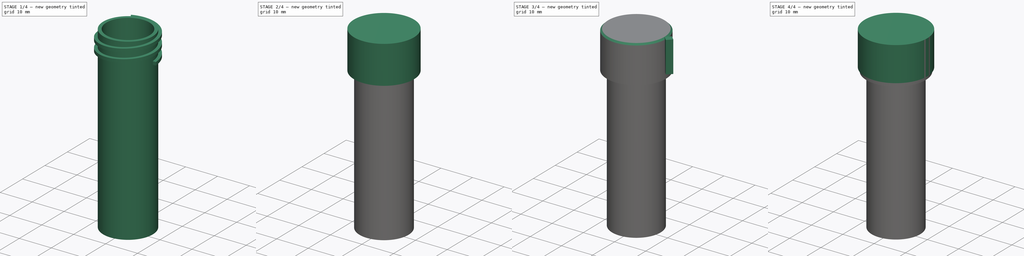
[diagram: build sequence overview — one tinted view per stage of 4, left to right]
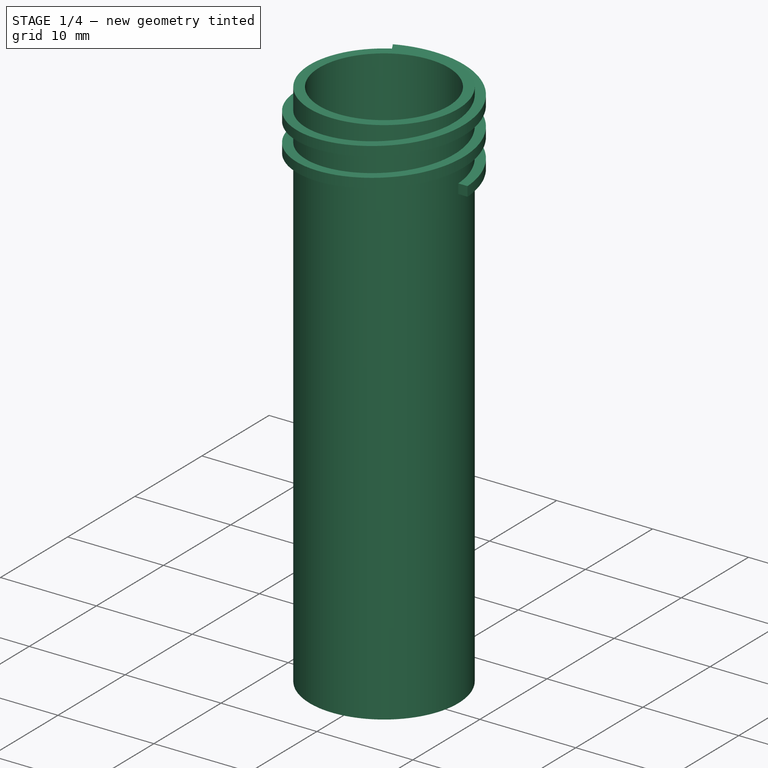
[diagram: stage 1 of 4 — iso view after this stage's code; geometry added in this stage tinted green]
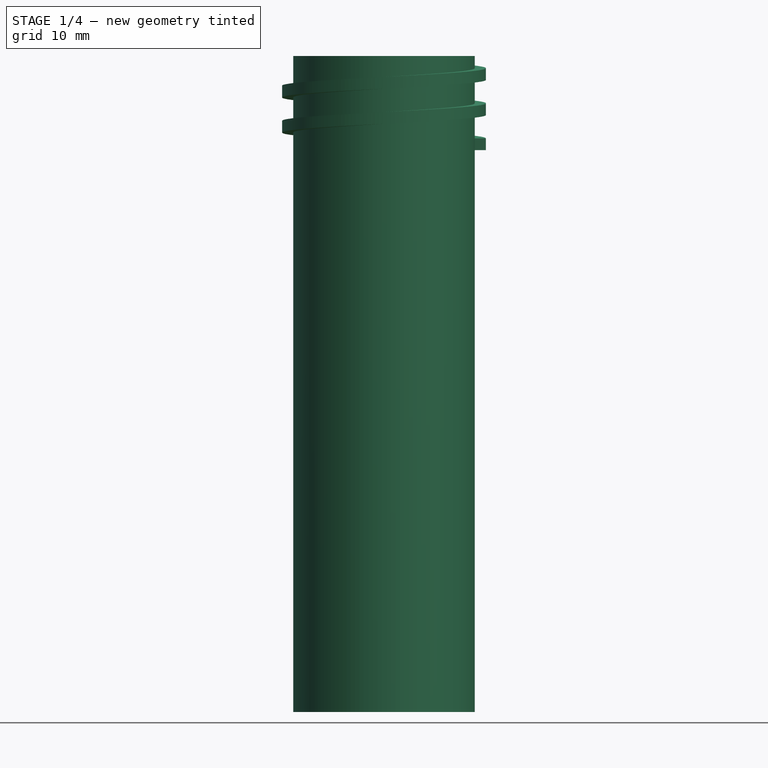
[diagram: stage 1 of 4 — front view after this stage's code; geometry added in this stage tinted green]
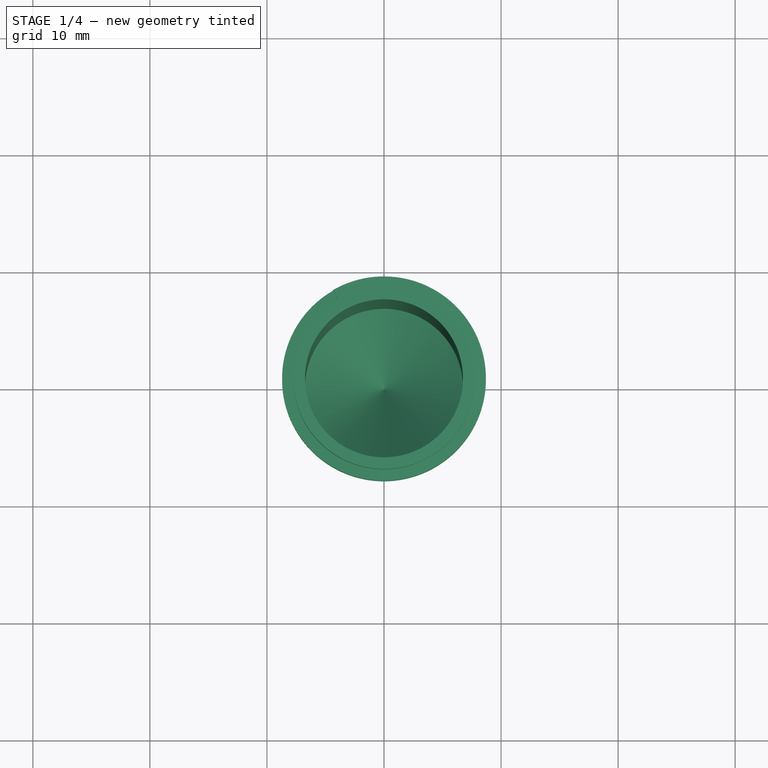
[diagram: stage 1 of 4 — top view after this stage's code; geometry added in this stage tinted green]
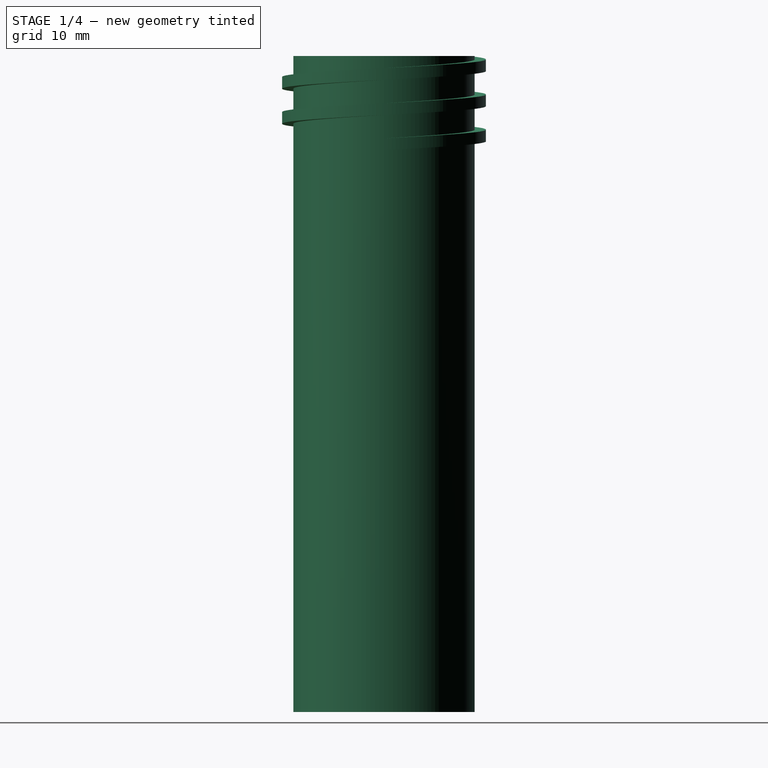
[diagram: stage 1 of 4 — right view after this stage's code; geometry added in this stage tinted green]
FCSTD DOCUMENT  (FreeCAD 0.20R27422 (Git))
Label: Tubes
License: All rights reserved
LicenseURL: http://en.wikipedia.org/wiki/All_rights_reserved
objects: Sketcher::SketchObject×5, TechDraw::DrawViewPart×5, PartDesign::Body×3, PartDesign::Revolution×2, Part::Cylinder×2, Part::Cut×2, Part::FeaturePython×2, Part::Helix×1, PartDesign::ShapeBinder×1, PartDesign::FeatureBase×1, PartDesign::AdditivePipe×1, Part::Part2DObjectPython×1, TechDraw::DrawSVGTemplate×1, Part::Compound×1, Part::Box×1, Part::Chamfer×1, TechDraw::DrawPage×1
note: 27 computed .brp shape members not serialized (recipe doc carries the construction recipe); baked Part::Feature solids carry a one-line shape summary decoded from their .brp

FEATURE [Sketcher::SketchObject] Sketch
  FullyConstrained = false
  MapMode = 5
  Placement = pos=(0,0,0) rot=(1,0,0;1.5708rad)
  Support = -> [XZ_Plane]
  sketch-geometry (12):
    g0: LineSegment StartX=0 StartY=0 StartZ=0 EndX=0 EndY=56 EndZ=0
    g1: LineSegment StartX=0 StartY=0 StartZ=0 EndX=7.75 EndY=0 EndZ=0
    g2: LineSegment StartX=0 StartY=0 StartZ=0 EndX=0 EndY=1.5 EndZ=0
    g3: LineSegment StartX=7.75 StartY=0 StartZ=0 EndX=7.75 EndY=7 EndZ=0
    g4: LineSegment StartX=7.75 StartY=0 StartZ=0 EndX=6.75 EndY=0 EndZ=0
    g5: LineSegment StartX=7.75 StartY=0 StartZ=0 EndX=7.75 EndY=56.0354 EndZ=0
    g6: LineSegment StartX=7.75 StartY=56.0354 StartZ=0 EndX=6.75 EndY=56.0354 EndZ=0
    g7: LineSegment StartX=6.75 StartY=56.0354 StartZ=0 EndX=6.75 EndY=9.14015 EndZ=0
    g8: LineSegment StartX=0 StartY=1.5 StartZ=0 EndX=6.75 EndY=8.14015 EndZ=0
    g9: LineSegment StartX=0 StartY=1.5 StartZ=0 EndX=0 EndY=2.5 EndZ=0
    g10: LineSegment StartX=0 StartY=2.5 StartZ=0 EndX=6.75 EndY=9.14015 EndZ=0
    g11: LineSegment StartX=6.75 StartY=8.14015 StartZ=0 EndX=6.75 EndY=0 EndZ=0
  constraints (30):
    c: Coincident(g0,g-1)
    c: PointOnObject(g0,g-2)
    c: DistanceY(g0,g0) = 56
    c: Coincident(g1,g0)
    c: Horizontal(g1)
    c: DistanceX(g1,g1) = 7.75
    c: Coincident(g2,g0)
    c: PointOnObject(g2,g0)
    c: DistanceY(g0,g2) = 1.5
    c: Coincident(g3,g1)
    c: Vertical(g3)
    c: DistanceY(g3,g3) = 7
    c: Coincident(g4,g1)
    c: PointOnObject(g4,g1)
    c: DistanceX(g4,g4) = 1
    c: Coincident(g5,g4)
    c: Vertical(g5)
    c: Coincident(g6,g5)
    c: Horizontal(g6)
    c: Coincident(g7,g6)
    c: Coincident(g11,g4)
    c: Vertical(g7)
    c: Coincident(g8,g2)
    c: Coincident(g9,g8)
    c: PointOnObject(g9,g0)
    c: Coincident(g10,g9)
    c: Parallel(g8,g10)
    c: DistanceY(g9,g9) = 1
    c: Coincident(g7,g10)
    c: Coincident(g11,g8)
FEATURE [PartDesign::Revolution] Revolution
  Angle = 360
  Axis = (0,2e-16,1)
  Base = (0,0,0)
  Placement = pos=(0,0,0) rot=(1,0,0;1.5708rad)
  Profile = -> Sketch
  ReferenceAxis = -> Sketch [V_Axis]
  Reversed = true
FEATURE [PartDesign::Body] Body  label="Tube body"
  Group = -> [Sketch,Revolution]
  Origin = -> Origin
  Tip = -> Revolution
FEATURE [Part::Helix] Helix
  Angle = 0
  AttacherType = Attacher::AttachEngine3D
  Height = 7
  LocalCoord = 0
  Pitch = 3
  Placement = pos=(0,0,4) rot=(0,0,1;0rad)
  Radius = 7.8
  SegmentLength = 1
  Style = 1
FEATURE [PartDesign::ShapeBinder] CopyCylinder002
  Placement = pos=(0,0,14.5) rot=(0,0,1;0rad)
  TraceSupport = false
FEATURE [Sketcher::SketchObject] Sketch001
  FullyConstrained = false
  MapMode = 5
  Placement = pos=(0,0,0) rot=(1,0,0;1.5708rad)
  Support = -> [XZ_Plane001]
  sketch-geometry (4):
    g0: LineSegment StartX=7.70917 StartY=0 StartZ=0 EndX=7.70917 EndY=1 EndZ=0
    g1: LineSegment StartX=7.70917 StartY=1 StartZ=0 EndX=8.70917 EndY=1 EndZ=0
    g2: LineSegment StartX=7.70917 StartY=0 StartZ=0 EndX=8.70917 EndY=0 EndZ=0
    g3: LineSegment StartX=8.70917 StartY=0 StartZ=0 EndX=8.70917 EndY=1 EndZ=0
  constraints (11):
    c: PointOnObject(g0,g-1)
    c: Vertical(g0)
    c: Coincident(g1,g0)
    c: Horizontal(g1)
    c: Coincident(g2,g0)
    c: Horizontal(g2)
    c: Equal(g2,g1)
    c: DistanceX(g1,g1) = 1
    c: Coincident(g3,g2)
    c: Coincident(g3,g1)
    c: DistanceY(g3,g3) = 1
FEATURE [Sketcher::SketchObject] Sketch002
  FullyConstrained = true
  MapMode = 5
  Placement = pos=(0,0,14.5) rot=(0,0,1;0rad)
  Support = -> [CopyCylinder002]
FEATURE [PartDesign::FeatureBase] BaseFeature
  BaseFeature = -> Helix
FEATURE [PartDesign::AdditivePipe] AdditivePipe
  AuxilleryCurvelinear = true
  AuxillerySpineTangent = false
  BaseFeature = -> BaseFeature
  Binormal = (0,0,0)
  Mode = 2
  Profile = -> Sketch001
  Spine = -> BaseFeature
  SpineTangent = false
  Transformation = 0
  Transition = 0
FEATURE [PartDesign::Body] Body002  label="Lid body"
  Group = -> [Sketch003,Revolution001]
  Origin = -> Origin002
  Tip = -> Revolution001
FEATURE [Part::Part2DObjectPython] ShapeString  # Draft 2D object (typed FeaturePython)
  FontFile = <userpath>/Desktop/Roboto-Black.ttf
  MakeFace = true
  Placement = pos=(19.9362,22.102,0) rot=(1,0,0;0rad)
  Size = 10
  String = 1
  Tracking = 0
FEATURE [TechDraw::DrawSVGTemplate] Template
  Height = 210
  Orientation = 1
  Width = 297
FEATURE [Part::Compound] Compound
  Links = -> [Body001,Body]
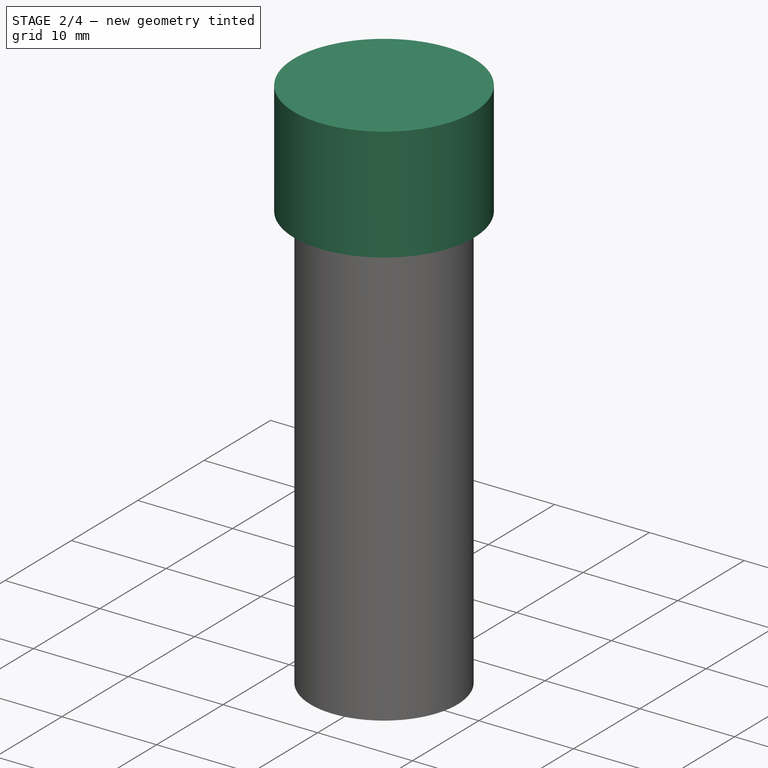
[diagram: stage 2 of 4 — iso view after this stage's code; geometry added in this stage tinted green]
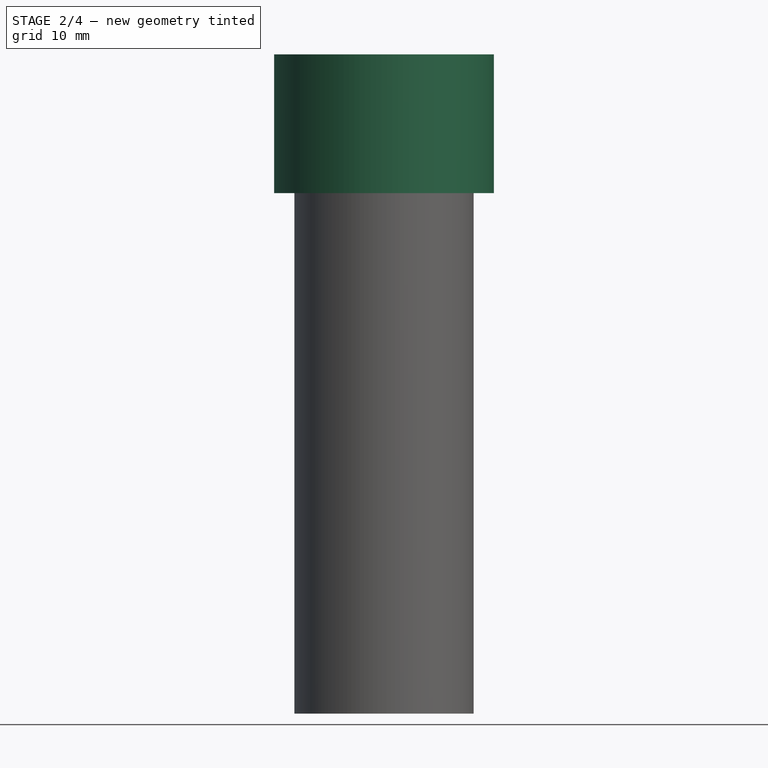
[diagram: stage 2 of 4 — front view after this stage's code; geometry added in this stage tinted green]
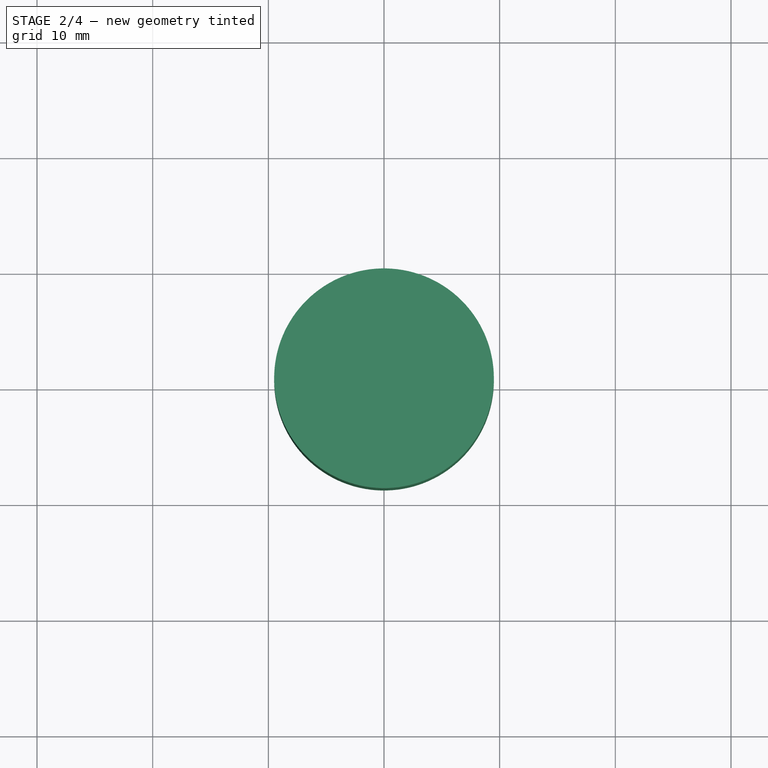
[diagram: stage 2 of 4 — top view after this stage's code; geometry added in this stage tinted green]
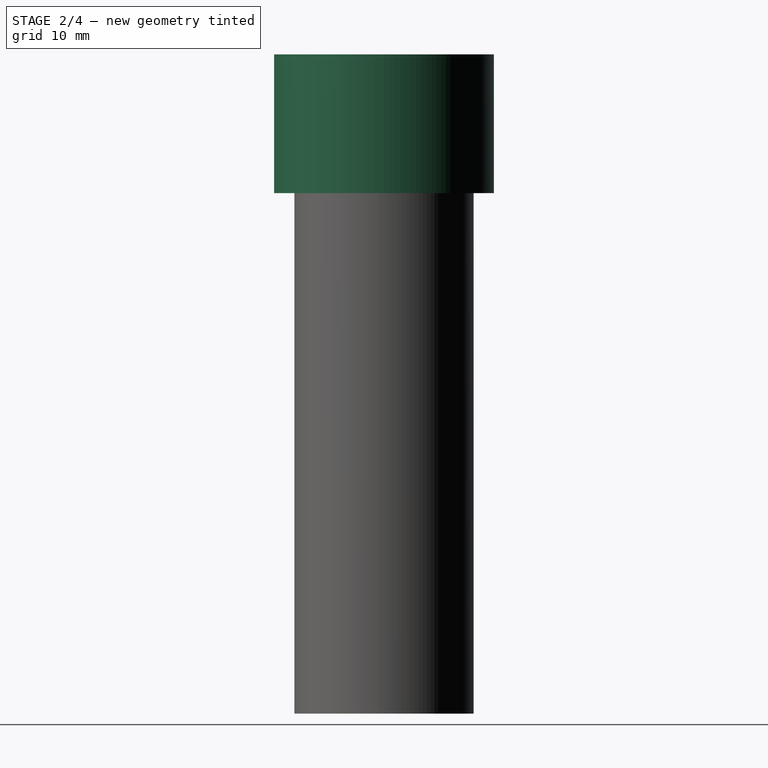
[diagram: stage 2 of 4 — right view after this stage's code; geometry added in this stage tinted green]
FEATURE [TechDraw::DrawViewPart] View
  CoarseView = false
  Direction = (0.577,-0.577,0.577)
  Focus = 100
  HardHidden = true
  IsoCount = 0
  IsoHidden = false
  IsoVisible = false
  LockPosition = false
  Perspective = false
  Rotation = 0
  ScaleType = 0
  SeamHidden = false
  SeamVisible = true
  SmoothHidden = false
  SmoothVisible = true
  Source = -> [Body001,Body]
  X = 54.2723
  XDirection = (0.707,0.707,0)
  Y = 149.51
FEATURE [TechDraw::DrawViewPart] View001
  CoarseView = false
  Direction = (0.577,-0.577,0.577)
  Focus = 100
  HardHidden = false
  IsoCount = 0
  IsoHidden = false
  IsoVisible = false
  LockPosition = false
  Perspective = false
  Rotation = 0
  ScaleType = 0
  SeamHidden = false
  SeamVisible = true
  SmoothHidden = false
  SmoothVisible = true
  Source = -> [Compound]
  X = 96.8878
  XDirection = (0.707,0.707,0)
  Y = 149.036
FEATURE [Part::Cylinder] Cylinder  label="Cup base"
  Angle = 360
  AttacherType = Attacher::AttachEngine3D
  FirstAngle = 0
  Height = 12
  Placement = pos=(0,0,45) rot=(0,0,1;0rad)
  Radius = 9.5
  SecondAngle = 0
FEATURE [Part::Cylinder] Cylinder001  label="Cup hole"
  Angle = 360
  AttacherType = Attacher::AttachEngine3D
  FirstAngle = 0
  Height = 12
  Placement = pos=(0,0,44) rot=(0,0,1;0rad)
  Radius = 8
  SecondAngle = 0
FEATURE [Part::Cut] Cut  label="Cup body"
  Base = -> Cylinder
  Tool = -> Cylinder001
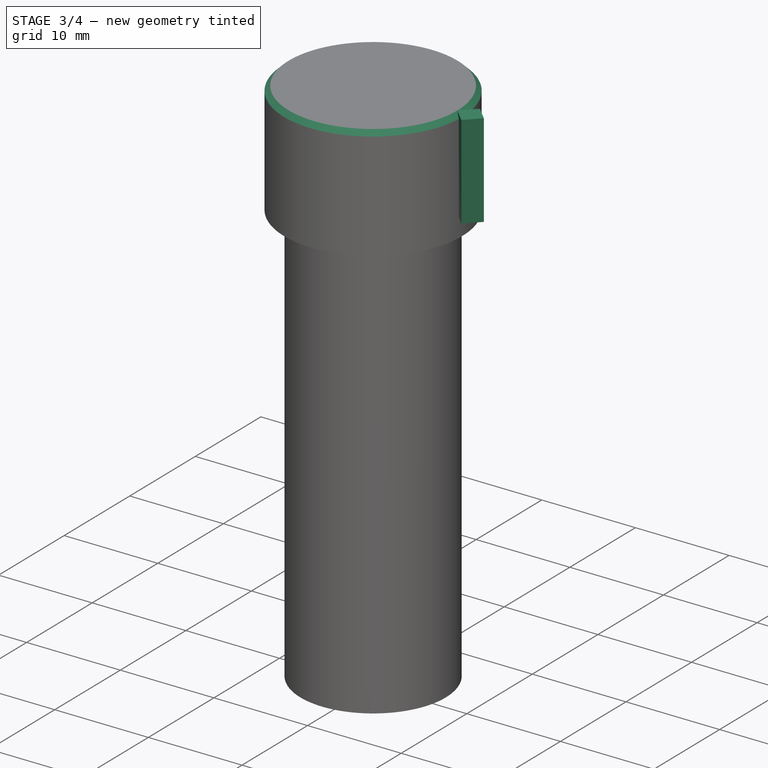
[diagram: stage 3 of 4 — iso view after this stage's code; geometry added in this stage tinted green]
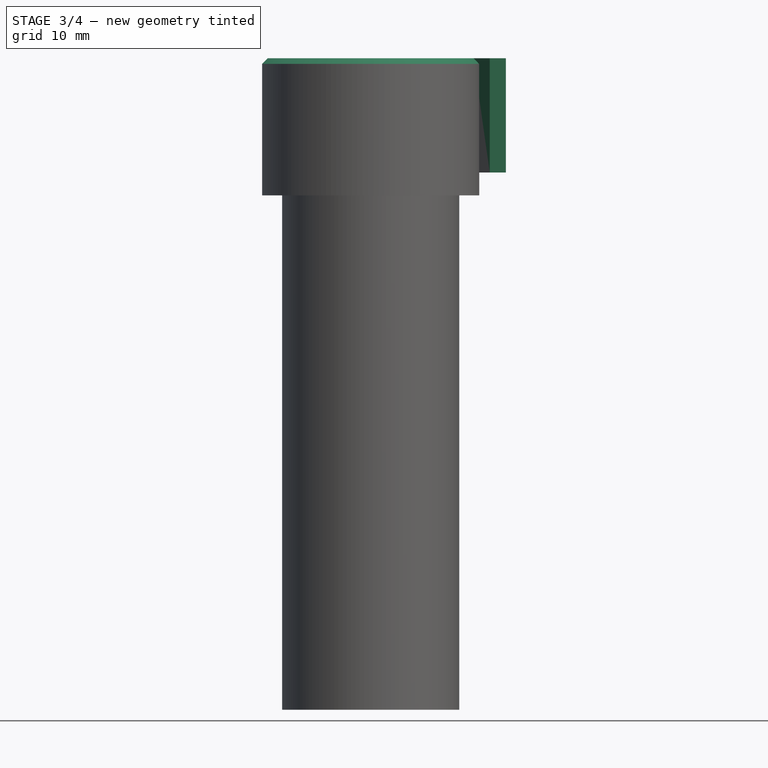
[diagram: stage 3 of 4 — front view after this stage's code; geometry added in this stage tinted green]
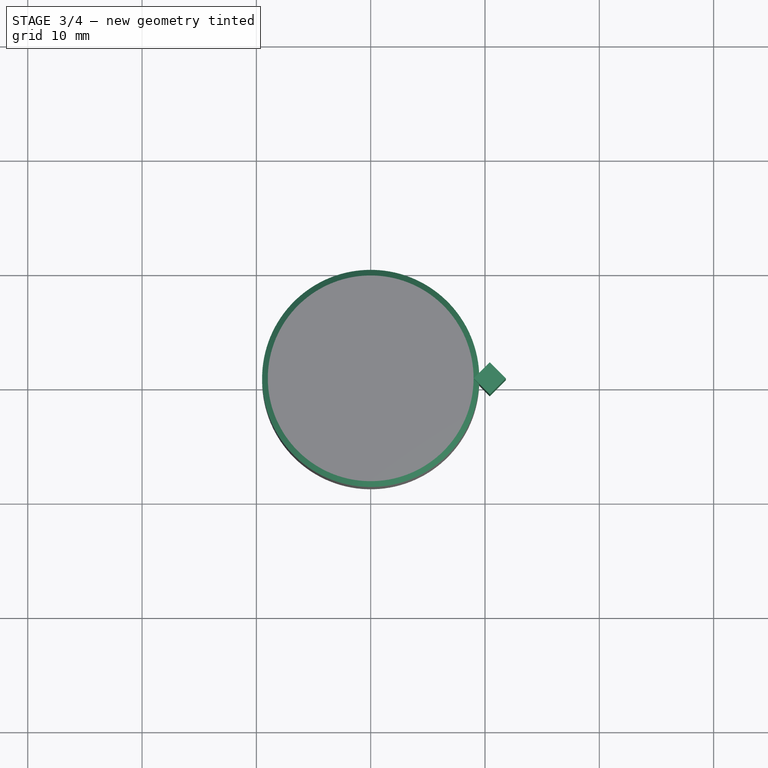
[diagram: stage 3 of 4 — top view after this stage's code; geometry added in this stage tinted green]
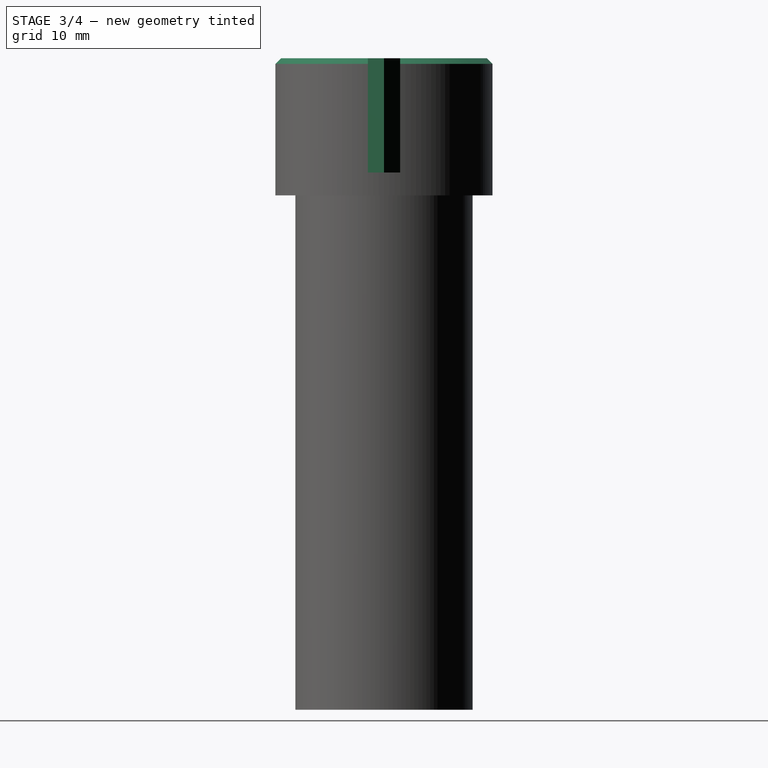
[diagram: stage 3 of 4 — right view after this stage's code; geometry added in this stage tinted green]
FEATURE [Part::Box] Box  label="Cube"
  AttacherType = Attacher::AttachEngine3D
  Height = 10
  Length = 2
  Placement = pos=(9,0,47) rot=(0,0,1;-0.785398rad)
  Width = 2
FEATURE [Part::Chamfer] Chamfer
  Base = -> Cut
  Edges = 1 edges r=0.5: [Edge3]
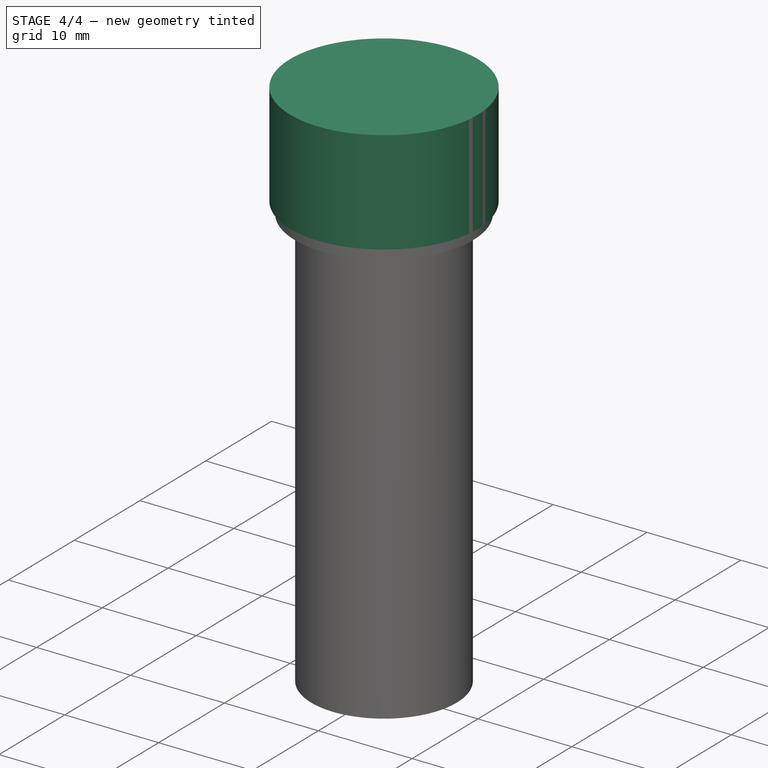
[diagram: stage 4 of 4 — iso view after this stage's code; geometry added in this stage tinted green]
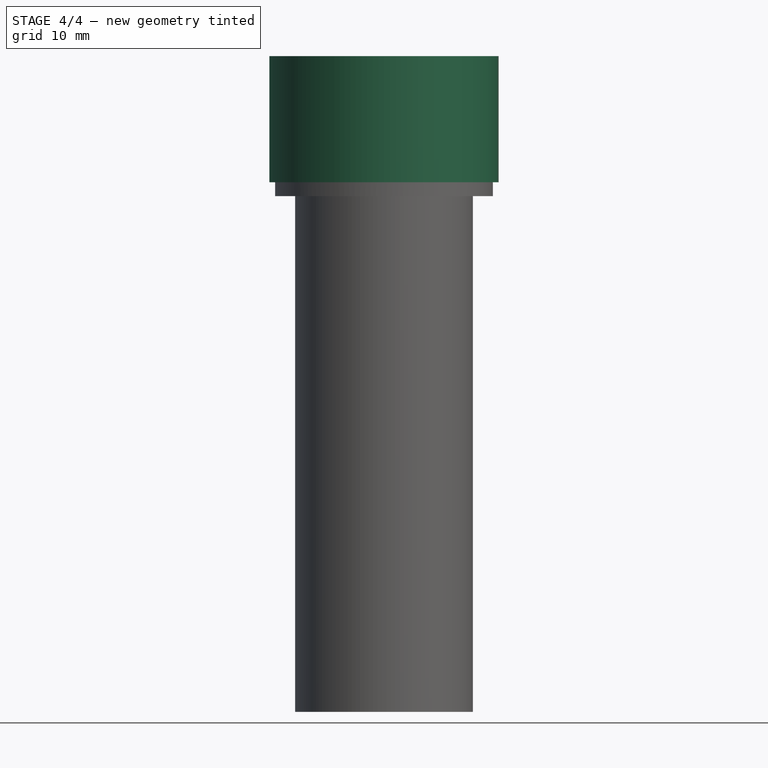
[diagram: stage 4 of 4 — front view after this stage's code; geometry added in this stage tinted green]
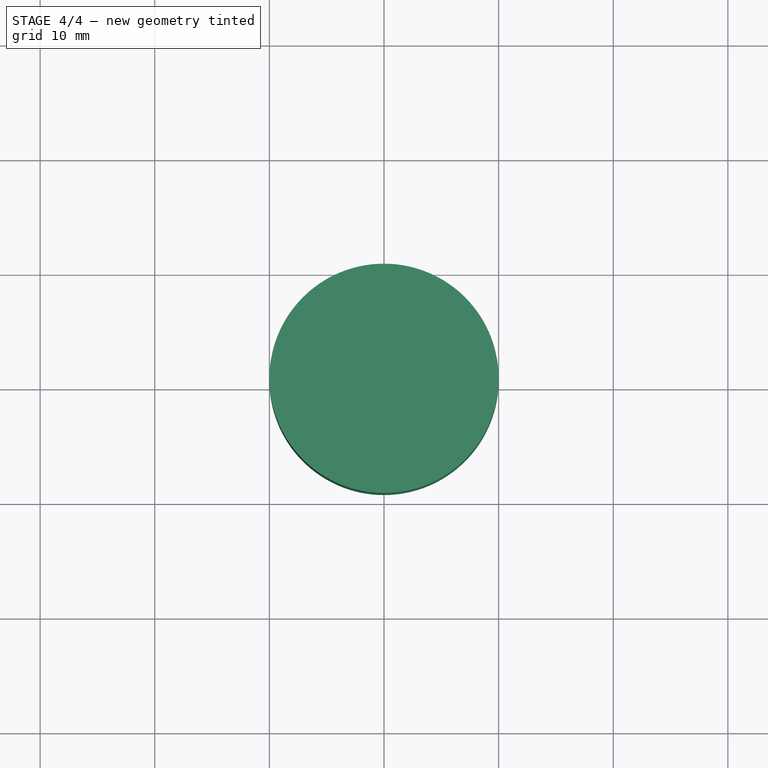
[diagram: stage 4 of 4 — top view after this stage's code; geometry added in this stage tinted green]
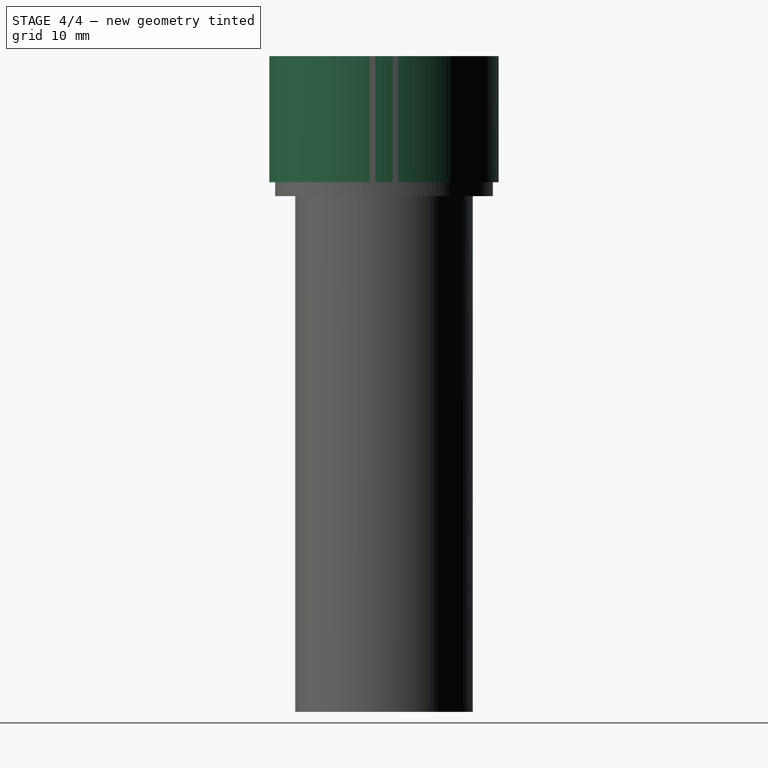
[diagram: stage 4 of 4 — right view after this stage's code; geometry added in this stage tinted green]
FEATURE [PartDesign::Body] Body001  label="Thread"
  BaseFeature = -> Helix
  Group = -> [BaseFeature,Sketch001,AdditivePipe,CopyCylinder002,Sketch002]
  Origin = -> Origin001
  Placement = pos=(0,0,48) rot=(0,0,1;0rad)
  Tip = -> AdditivePipe
FEATURE [Sketcher::SketchObject] Sketch003
  FullyConstrained = false
  MapMode = 5
  Placement = pos=(0,0,0) rot=(0.57735,0.57735,0.57735;2.0944rad)
  Support = -> [YZ_Plane002]
  sketch-geometry (6):
    g0: LineSegment StartX=0 StartY=57.2061 StartZ=0 EndX=10 EndY=57.2061 EndZ=0
    g1: LineSegment StartX=10 StartY=57.2061 StartZ=0 EndX=10 EndY=46.2061 EndZ=0
    g2: LineSegment StartX=10 StartY=46.2061 StartZ=0 EndX=9 EndY=46.2061 EndZ=0
    g3: LineSegment StartX=9 StartY=46.2061 StartZ=0 EndX=9 EndY=56.2061 EndZ=0
    g4: LineSegment StartX=9 StartY=56.2061 StartZ=0 EndX=0 EndY=56.2061 EndZ=0
    g5: LineSegment StartX=0 StartY=56.2061 StartZ=0 EndX=0 EndY=57.2061 EndZ=0
  constraints (17):
    c: PointOnObject(g0,g-2)
    c: Horizontal(g0)
    c: Coincident(g1,g0)
    c: Vertical(g1)
    c: Coincident(g2,g1)
    c: Horizontal(g2)
    c: Coincident(g3,g2)
    c: Vertical(g3)
    c: Coincident(g4,g3)
    c: PointOnObject(g4,g-2)
    c: Horizontal(g4)
    c: Coincident(g5,g4)
    c: Coincident(g5,g0)
    c: DistanceY(g5,g5) = 1
    c: DistanceX(g2,g2) = 1
    c: DistanceX(g0,g0) = 10
    c: DistanceY(g1,g0) = 11
FEATURE [PartDesign::Revolution] Revolution001
  Angle = 360
  Axis = (-2e-16,3e-16,1)
  Base = (0,0,0)
  Placement = pos=(0,0,0) rot=(0.57735,0.57735,0.57735;2.0944rad)
  Profile = -> Sketch003
  ReferenceAxis = -> Sketch003 [V_Axis]
  Reversed = true
FEATURE [Part::FeaturePython] Array  # Draft array (typed FeaturePython)
  AlwaysSyncPlacement = false
  Angle = 360
  ArrayType = 1
  Axis = (0,0,1)
  Base = -> Box
  Center = (0,0,0)
  Count = 45
  ExpandArray = false
  Fuse = true
  IntervalAxis = (0,0,0)
  IntervalX = (50,0,0)
  IntervalY = (0,50,0)
  IntervalZ = (0,0,50)
  NumberCircles = 3
  NumberPolar = 45
  NumberX = 2
  NumberY = 2
  NumberZ = 1
  PlacementList = 45 placements: [(9,0,47),(8.91241,1.25256,47),(8.65136,2.48074,47),(8.22191,3.66063,47),(7.63243,4.76927,47),(6.8944,5.78509,47),(6.02218,6.6883,47),(5.03274,7.46134,47),(3.94534,8.08915,47),(2.78115,8.55951,47),(1.56283,8.86327,47),(0.314095,8.99452,47),(-0.940756,8.9507,47),(-2.1773,8.73266,47),(-3.37146,8.34465,47),(-4.5,7.79423,47),(-5.54095,7.0921,47),(-6.47406,6.25193,47),(-7.28115,5.29007,47),+26 more]
  RadialDistance = 50
  ScaleList = (45) [(1,1,1),(1,1,1),(1,1,1),(1,1,1),(1,1,1),(1,1,1),(1,1,1),(1,1,1),(1,1,1),(1,1,1),(1,1,1),(1,1,1),(1,1,1),(1,1,1),(1,1,1),(1,1,1),(1,1,1),(1,1,1),+27 more]
  Symmetry = 1
  TangentialDistance = 25
FEATURE [Part::Cut] Cut001  label="Cup with bell and wistles"
  Base = -> Chamfer
  Tool = -> Array
FEATURE [TechDraw::DrawViewPart] View002
  CoarseView = false
  Direction = (0.577,-0.577,0.577)
  Focus = 100
  HardHidden = false
  IsoCount = 0
  IsoHidden = false
  IsoVisible = false
  LockPosition = false
  Perspective = false
  Rotation = 0
  ScaleType = 0
  SeamHidden = false
  SeamVisible = true
  SmoothHidden = false
  SmoothVisible = true
  Source = -> [Cut001]
  X = 54.9825
  XDirection = (0.707,0.707,0)
  Y = 78.9572
FEATURE [TechDraw::DrawViewPart] View003
  CoarseView = false
  Direction = (0.577,-0.577,0.577)
  Focus = 100
  HardHidden = false
  IsoCount = 0
  IsoHidden = false
  IsoVisible = false
  LockPosition = false
  Perspective = false
  Rotation = 0
  ScaleType = 0
  SeamHidden = false
  SeamVisible = true
  SmoothHidden = false
  SmoothVisible = true
  X = 138.083
  XDirection = (0.707,0.707,0)
  Y = 148.563
FEATURE [TechDraw::DrawViewPart] View006
  CoarseView = false
  Direction = (0.577,-0.577,0.577)
  Focus = 100
  HardHidden = true
  IsoCount = 0
  IsoHidden = false
  IsoVisible = false
  LockPosition = false
  Perspective = false
  Rotation = 0
  ScaleType = 0
  SeamHidden = false
  SeamVisible = true
  SmoothHidden = false
  SmoothVisible = true
  X = 193.957
  XDirection = (0.707,0.707,0)
  Y = 147.852
FEATURE [TechDraw::DrawPage] Page
  KeepUpdated = false
  NextBalloonIndex = 1
  ProjectionType = 0
  Template = -> Template
  Views = -> [View,View001,View002,View003,View006]
FEATURE [Sketcher::SketchObject] Mapped_Sketch
  FullyConstrained = false
  Support = -> [Compound]
  sketch-geometry (8):
    g0: LineSegment StartX=0 StartY=0 StartZ=0 EndX=48.6947 EndY=0 EndZ=0
    g1: LineSegment StartX=48.6947 StartY=0 StartZ=0 EndX=48.6947 EndY=56.0354 EndZ=0
    g2: LineSegment StartX=48.6947 StartY=56.0354 StartZ=0 EndX=0 EndY=56.0354 EndZ=0
    g3: LineSegment StartX=0 StartY=56.0354 StartZ=0 EndX=0 EndY=0 EndZ=0
    g4: LineSegment StartX=1.21849 StartY=54.7989 StartZ=0 EndX=47.5934 EndY=54.7989 EndZ=0
    g5: LineSegment StartX=47.5934 StartY=54.7989 StartZ=0 EndX=47.5934 EndY=0.832876 EndZ=0
    g6: LineSegment StartX=47.5934 StartY=0.832876 StartZ=0 EndX=1.21849 EndY=0.832876 EndZ=0
    g7: LineSegment StartX=1.21849 StartY=0.832876 StartZ=0 EndX=1.21849 EndY=54.7989 EndZ=0
  constraints (20):
    c: Coincident(g0,g1)
    c: Coincident(g1,g2)
    c: Coincident(g2,g3)
    c: Coincident(g3,g0)
    c: Horizontal(g0)
    c: Horizontal(g2)
    c: Vertical(g1)
    c: Vertical(g3)
    c: DistanceX(g2,g2) = 48.6947
    c: DistanceY(g1,g1) = 56.0354
    c: DistanceX(g0,g-1) = 0
    c: DistanceY(g0,g-1) = 0
    c: Coincident(g4,g5)
    c: Coincident(g5,g6)
    c: Coincident(g6,g7)
    c: Coincident(g7,g4)
    c: Horizontal(g4)
    c: Horizontal(g6)
    c: Vertical(g5)
    c: Vertical(g7)
FEATURE [Part::FeaturePython] Sketch_On_Surface  # WARN: FeaturePython — macro-defined, semantics opaque (R4)
  ConstructionBounds = true
  ExtraObjects = -> [ShapeString]
  FillExtrusion = true
  FillFaces = false
  ReverseU = true
  ReverseV = false
  Sketch = -> Mapped_Sketch
  SwapUV = false
  Thickness = 0
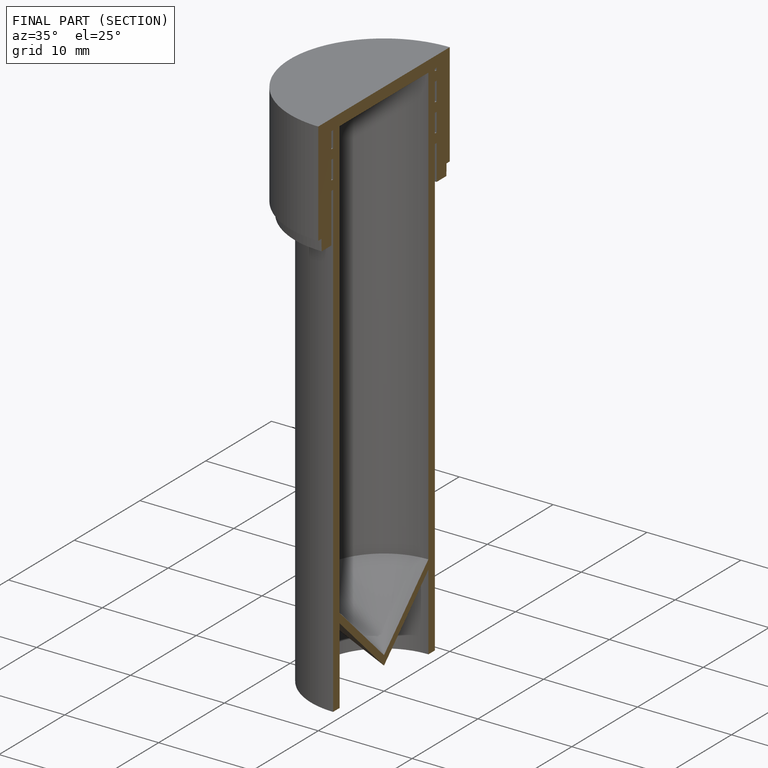
[diagram: finished part — half-section view (interior)]
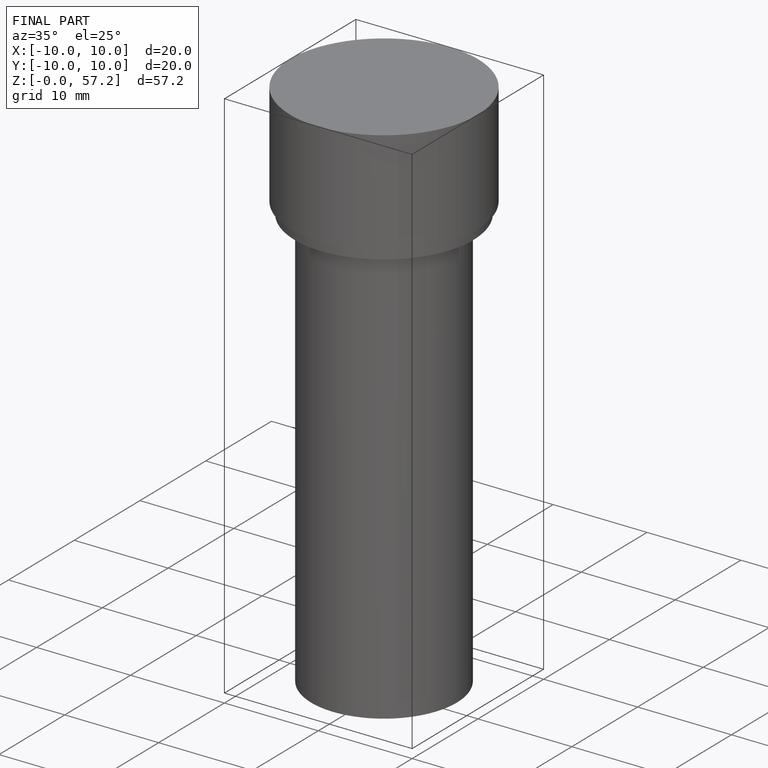
[diagram: finished part — iso view with bounding-box wireframe]
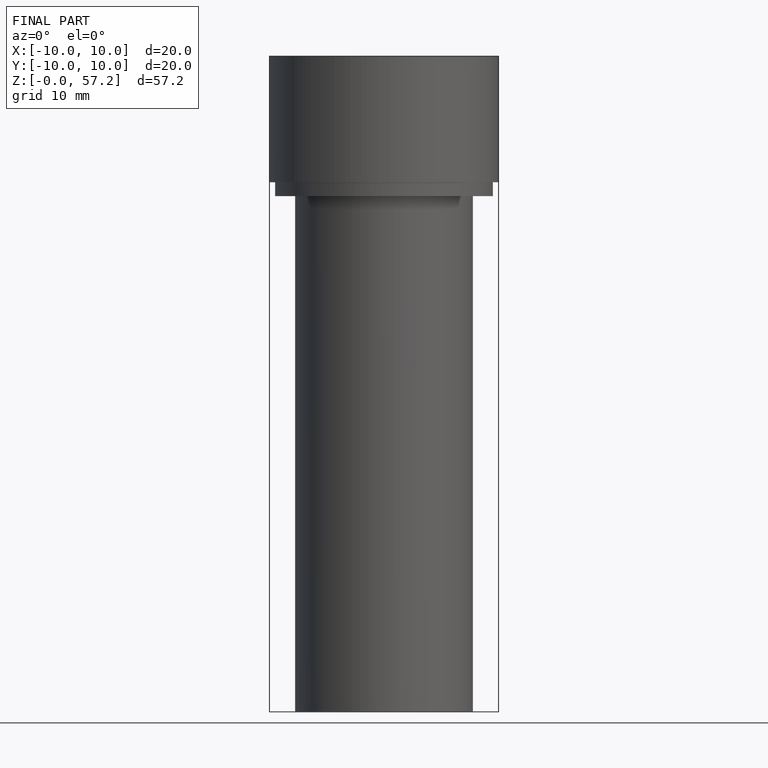
[diagram: finished part — front view with bounding-box wireframe]
